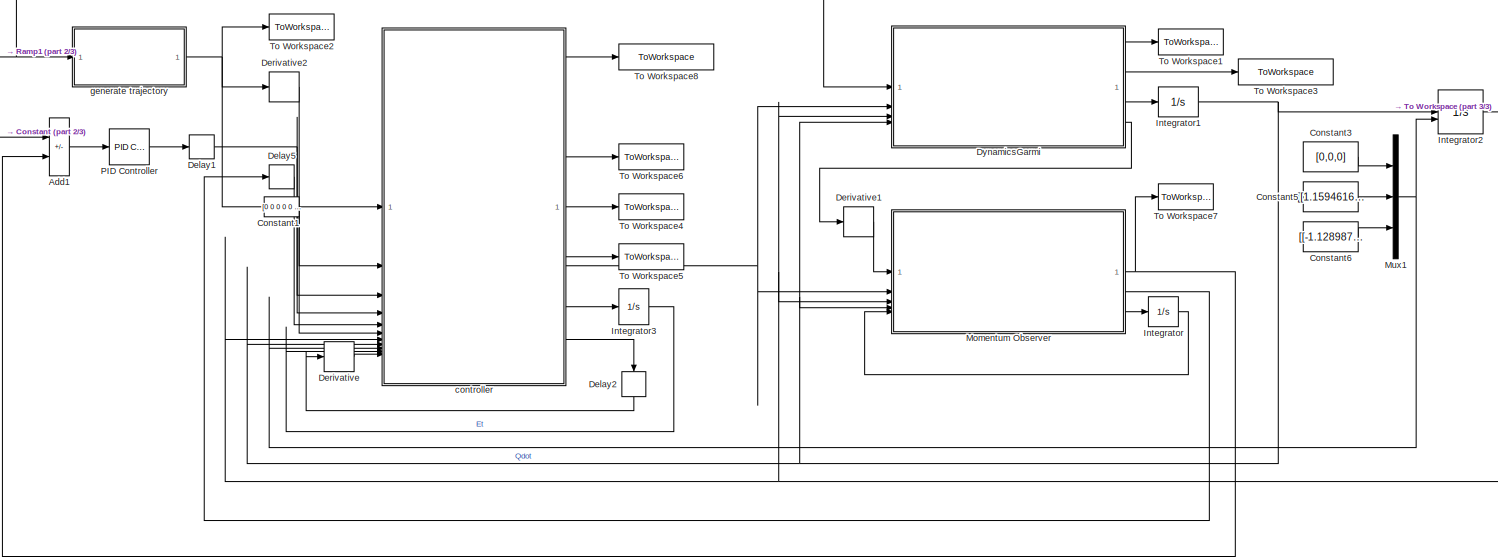
[diagram: root canvas - part 1/3, most of the canvas]
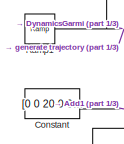
[diagram: root canvas - part 2/3, top left region]
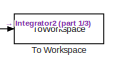
[diagram: root canvas - part 3/3, top right region]
MODEL slx_94375492d72f
KIND model
CONFIG AbsTol = 1e-3
CONFIG EnableMultiTasking = off
CONFIG FixedStep = .001
CONFIG MaxStep = auto
CONFIG MinStep = auto
CONFIG RelTol = 1e-3
CONFIG SampleTimeConstraint = Unconstrained
CONFIG SolverName = ode1
CONFIG StartTime = 0.0
CONFIG StopTime = 40
BLOCK [Sum] Add1
  IconShape = rectangular
  Inputs = +-
BLOCK [Constant] Constant
  Value = [0 0 20 0 0 0 0 0 20 0 0 0]'
BLOCK [Constant] Constant1
  Value = [0 0 0 0 0 0 0 0 0 0 0 0 0 0 0 0 0]
BLOCK [Constant] Constant3
  Value = [0,0,0]
BLOCK [Constant] Constant5
  Value = [[1.159461609037299, -1.6000122252681799, -0.05584684541350855, -2.1649581944754175, -2.649529466629028, 2.466730273079475, -0.008812048809307789]]
BLOCK [Constant] Constant6
  Value = [[-1.1289879248603267, -1.526043571178735, 0.1314950197577818, -2.0453876018029984, 2.3706213790056045, 2.5849102800687156, 0.20377376270520245]]
BLOCK [Delay] Delay1
  DelayLength = 1
  InitialCondition = zeros(12,1)
  InputPortMap = u0
  NameLocation = top
BLOCK [Delay] Delay2
  DelayLength = 1
  InitialCondition = zeros(12,16)
  InputPortMap = u0
  NameLocation = right
BLOCK [Delay] Delay5
  DelayLength = 1
  InitialCondition = zeros(16,1)
  InputPortMap = u0
  NameLocation = top
BLOCK [Derivative] Derivative
BLOCK [Derivative] Derivative1
  NameLocation = top
BLOCK [Derivative] Derivative2
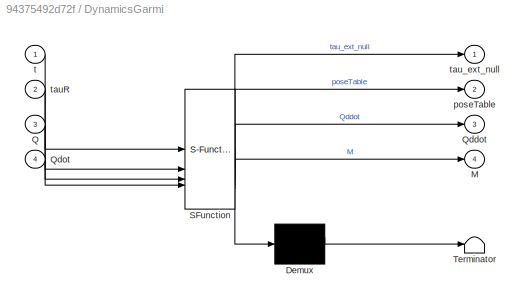
BLOCK [SubSystem] DynamicsGarmi
  ErrorFcn = Stateflow.Translate.translate
  PermitHierarchicalResolution = ExplicitOnly
  SFBlockType = MATLAB Function
  SystemSampleTime = 0.001
  TreatAsAtomicUnit = on
BLOCK [Demux] DynamicsGarmi/ Demux 
  Outputs = 1
BLOCK [S-Function] DynamicsGarmi/ SFunction 
  EnableBusSupport = on
  FunctionName = sf_sfun
  PortCounts = [4 5]
  SFcnIsStateOwnerBlock = off
  SFunctionDeploymentMode = off
  Tag = Stateflow S-Function 11
BLOCK [Terminator] DynamicsGarmi/ Terminator 
BLOCK [Outport] DynamicsGarmi/M
  Port = 4
BLOCK [Inport] DynamicsGarmi/Q
  Port = 3
BLOCK [Outport] DynamicsGarmi/Qddot
  Port = 3
  VectorParamsAs1DForOutWhenUnconnected = off
BLOCK [Inport] DynamicsGarmi/Qdot
  Port = 4
BLOCK [Outport] DynamicsGarmi/poseTable
  Port = 2
BLOCK [Inport] DynamicsGarmi/t
BLOCK [Inport] DynamicsGarmi/tauR
  Port = 2
BLOCK [Outport] DynamicsGarmi/tau_ext_null
BLOCK [Integrator] Integrator
  InitialCondition = zeros(16,1)
BLOCK [Integrator] Integrator1
  InitialCondition = [0,0,0,0,0,0,0,0,0,0,0,0,0,0,0,0,0]
BLOCK [Integrator] Integrator2
  InitialCondition = [0.942613,-1.37299,-0.0288793,-1.84589,0.131607,1.92806,-0.40]
  InitialConditionSource = external
BLOCK [Integrator] Integrator3
  InitialCondition = [0.01;0.01]
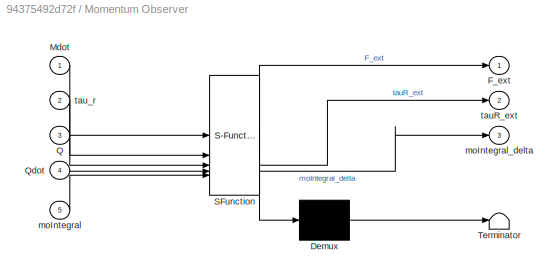
BLOCK [SubSystem] Momentum Observer
  ErrorFcn = Stateflow.Translate.translate
  PermitHierarchicalResolution = ExplicitOnly
  SFBlockType = MATLAB Function
  SystemSampleTime = 0.001
  TreatAsAtomicUnit = on
BLOCK [Demux] Momentum Observer/ Demux 
  Outputs = 1
BLOCK [S-Function] Momentum Observer/ SFunction 
  EnableBusSupport = on
  FunctionName = sf_sfun
  PortCounts = [5 4]
  SFcnIsStateOwnerBlock = off
  SFunctionDeploymentMode = off
  Tag = Stateflow S-Function 2
BLOCK [Terminator] Momentum Observer/ Terminator 
BLOCK [Outport] Momentum Observer/F_ext
BLOCK [Inport] Momentum Observer/Mdot
BLOCK [Inport] Momentum Observer/Q
  Port = 3
BLOCK [Inport] Momentum Observer/Qdot
  Port = 4
BLOCK [Inport] Momentum Observer/moIntegral
  Port = 5
BLOCK [Outport] Momentum Observer/moIntegral_delta
  Port = 3
BLOCK [Outport] Momentum Observer/tauR_ext
  Port = 2
BLOCK [Inport] Momentum Observer/tau_r
  Port = 2
BLOCK [Mux] Mux1
  DisplayOption = bar
  Inputs = 3
BLOCK [Reference] PID Controller  REF=slpidlib/PID Controller
  LibrarySourceBlock = simulink/Continuous/PID Controller
  SourceBlock = slpidlib/PID Controller
  SourceType = PID 1dof
BLOCK [Reference] Ramp1  REF=simulink/Sources/Ramp
  SourceBlock = simulink/Sources/Ramp
  SourceType = Ramp
BLOCK [ToWorkspace] To Workspace
  FixptAsFi = on
  MaxDataPoints = inf
  SampleTime = -1
  SaveFormat = Timeseries
  VariableName = Q
BLOCK [ToWorkspace] To Workspace1
  FixptAsFi = on
  MaxDataPoints = inf
  SampleTime = -1
  SaveFormat = Timeseries
  VariableName = tau_ext
BLOCK [ToWorkspace] To Workspace2
  FixptAsFi = on
  MaxDataPoints = inf
  SampleTime = -1
  SaveFormat = Timeseries
  VariableName = trajRef
BLOCK [ToWorkspace] To Workspace3
  FixptAsFi = on
  MaxDataPoints = inf
  SampleTime = -1
  SaveFormat = Timeseries
  VariableName = poseTable
BLOCK [ToWorkspace] To Workspace4
  FixptAsFi = on
  MaxDataPoints = inf
  SampleTime = -1
  SaveFormat = Timeseries
  VariableName = T_f
BLOCK [ToWorkspace] To Workspace5
  FixptAsFi = on
  MaxDataPoints = inf
  SampleTime = -1
  SaveFormat = Timeseries
  VariableName = T_i
BLOCK [ToWorkspace] To Workspace6
  FixptAsFi = on
  MaxDataPoints = inf
  SampleTime = -1
  SaveFormat = Timeseries
  VariableName = rho_z
BLOCK [ToWorkspace] To Workspace7
  FixptAsFi = on
  MaxDataPoints = inf
  SampleTime = -1
  SaveFormat = Timeseries
  VariableName = F_ext
BLOCK [ToWorkspace] To Workspace8
  FixptAsFi = on
  MaxDataPoints = inf
  SampleTime = -1
  SaveFormat = Timeseries
  VariableName = X_rel
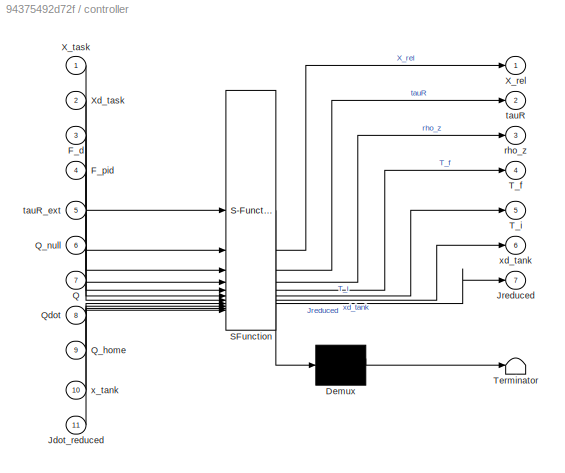
BLOCK [SubSystem] controller
  ErrorFcn = Stateflow.Translate.translate
  PermitHierarchicalResolution = ExplicitOnly
  SFBlockType = MATLAB Function
  TreatAsAtomicUnit = on
BLOCK [Demux] controller/ Demux 
  Outputs = 1
BLOCK [S-Function] controller/ SFunction 
  EnableBusSupport = on
  FunctionName = sf_sfun
  PortCounts = [11 8]
  SFcnIsStateOwnerBlock = off
  SFunctionDeploymentMode = off
  Tag = Stateflow S-Function 1
BLOCK [Terminator] controller/ Terminator 
BLOCK [Inport] controller/F_d
  Port = 3
BLOCK [Inport] controller/F_pid
  Port = 4
BLOCK [Inport] controller/Jdot_reduced
  Port = 11
BLOCK [Outport] controller/Jreduced
  Port = 7
BLOCK [Inport] controller/Q
  Port = 7
BLOCK [Inport] controller/Q_home
  Port = 9
BLOCK [Inport] controller/Q_null
  Port = 6
BLOCK [Inport] controller/Qdot
  Port = 8
BLOCK [Outport] controller/T_f
  Port = 4
BLOCK [Outport] controller/T_i
  Port = 5
BLOCK [Outport] controller/X_rel
BLOCK [Inport] controller/X_task
BLOCK [Inport] controller/Xd_task
  Port = 2
BLOCK [Outport] controller/rho_z
  Port = 3
BLOCK [Outport] controller/tauR
  Port = 2
BLOCK [Inport] controller/tauR_ext
  Port = 5
BLOCK [Inport] controller/x_tank
  Port = 10
BLOCK [Outport] controller/xd_tank
  Port = 6
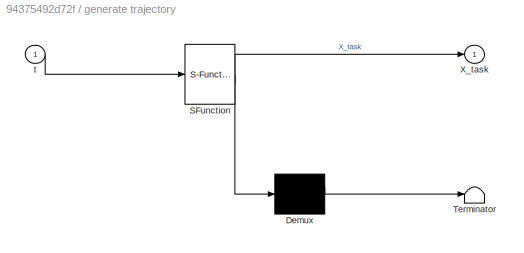
BLOCK [SubSystem] generate trajectory
  ErrorFcn = Stateflow.Translate.translate
  LibrarySourceBlock = simulink/User-Defined\nFunctions/MATLAB Function
  PermitHierarchicalResolution = ExplicitOnly
  SFBlockType = MATLAB Function
  TreatAsAtomicUnit = on
BLOCK [Demux] generate trajectory/ Demux 
  Outputs = 1
BLOCK [S-Function] generate trajectory/ SFunction 
  EnableBusSupport = on
  FunctionName = sf_sfun
  PortCounts = [1 2]
  SFcnIsStateOwnerBlock = off
  SFunctionDeploymentMode = off
  Tag = Stateflow S-Function 4
BLOCK [Terminator] generate trajectory/ Terminator 
BLOCK [Outport] generate trajectory/X_task
BLOCK [Inport] generate trajectory/t
LINE Add1:1 -> PID Controller:1
LINE Constant1:1 -> controller:6
LINE Constant3:1 -> Mux1:1
LINE Constant5:1 -> Mux1:2
LINE Constant6:1 -> Mux1:3
LINE Constant:1 -> Add1:1
NET Delay1:1 -> controller:3, controller:4
LINE Delay2:1 -> Derivative:1
LINE Delay5:1 -> controller:5
LINE Derivative1:1 -> Momentum Observer:1
LINE Derivative2:1 -> controller:2
LINE Derivative:1 -> controller:11
LINE DynamicsGarmi:1 -> To Workspace1:1
LINE DynamicsGarmi:2 -> To Workspace3:1
LINE DynamicsGarmi:3 -> Integrator1:1
LINE DynamicsGarmi:4 -> Derivative1:1
NET Integrator1:1 -> DynamicsGarmi:4, Integrator2:1, Momentum Observer:4, controller:8
NET Integrator2:1 -> DynamicsGarmi:3, Momentum Observer:3, To Workspace:1, controller:7
LINE Integrator3:1 -> controller:10
LINE Integrator:1 -> Momentum Observer:5
NET Momentum Observer:1 -> Add1:2, To Workspace7:1
LINE Momentum Observer:2 -> Delay5:1
LINE Momentum Observer:3 -> Integrator:1
NET Mux1:1 -> Integrator2:2, controller:9
LINE PID Controller:1 -> Delay1:1
NET Ramp1:1 -> DynamicsGarmi:1, generate trajectory:1
LINE controller:1 -> To Workspace8:1
NET controller:2 -> DynamicsGarmi:2, Momentum Observer:2
LINE controller:3 -> To Workspace6:1
LINE controller:4 -> To Workspace4:1
LINE controller:5 -> To Workspace5:1
LINE controller:6 -> Integrator3:1
LINE controller:7 -> Delay2:1
NET generate trajectory:1 -> Derivative2:1, To Workspace2:1, controller:1
note: NET lines group one-source signal fan-out (src -> all destinations, sorted); 1:1 wires keep LINE
CHART generate trajectory states=1 transitions=1
  STATE_LABEL 'eML_blk_kernel()'
  STATE_LABEL "SCRIPT:\nfunction X_task = refPath(t)\n    % Generates a circular trajectory for the right arm in the XY plane\n    % using screw representation, while keeping the left arm's pose unchanged.\n    %\n    % Input:\n    %   t      - Current time\n    %\n    % Output:\n    %   X_task - 6x2 matrix representing [Right Arm Screw Pose, Left Arm Screw Pose]\n\n    % Define parameters\n    radius = 0.1;                ...<+640ch>"
CHART DynamicsGarmi states=1 transitions=1
  STATE_LABEL 'eML_blk_kernel()'
  STATE_LABEL 'SCRIPT:\nfunction  [tau_ext_null, poseTable, Qddot,M] = stepDynamics(t, tauR, Q, Qdot)\nX = [pose_arm(Q, 8, true), pose_arm(Q, 8, false)];\n% Compute Whole Body Jacobian for right and left arm\nJwb_right = JacobianWholeBody(Q,8,true);\nJwb_left = JacobianWholeBody(Q,8,false);\nJwb = [Jwb_right;Jwb_left];\nXdot = Jwb*Qdot;\n\n% Compute whole body dynamics  model for the model based control.\n[M, C, G] = comp...<+3608ch>'
CHART controller states=1 transitions=1
  STATE_LABEL 'eML_blk_kernel()'
  STATE_LABEL 'SCRIPT:\nfunction [X_rel, tauR, rho_z, T_f, T_i, xd_tank, Jreduced] = wholeBodyUFICController(X_task, Xd_task, F_d, F_pid ,tauR_ext, Q_null, Q, Qdot, Q_home,x_tank , Jdot_reduced)\n\n%% Define control parameters for task space\n% Define gains for translation and orientation components\nK_task_translation = 625; % Stiffness for translation components\nK_task_orientation = 9; % Stiffness for orientation c...<+3608ch>'
CHART Momentum Observer states=1 transitions=1
  STATE_LABEL 'eML_blk_kernel()'
  STATE_LABEL 'SCRIPT:\nfunction [F_ext, tauR_ext, moIntegral_delta] = observer(Mdot, tau_r,Q,Qdot, moIntegral)\n\n% Compute whole body dynamics  model for the model based control.\n[M, C, G] = computeDynamics(Q, Qdot);\n\n% watch this video to learn how to drive these equations:\n%  https://www.youtube.com/watch?v=C1cb03fYkxk\n\n% Nonholomonic contriant matrix:\nA = [-sin(Q(3)), cos(Q(3)), 0, zeros(1,14)];\nAdot = [-Qdot(...<+3608ch>'
CHART  states=0 transitions=0
CHART  states=0 transitions=0
CHART  states=0 transitions=0
CHART  states=0 transitions=0
